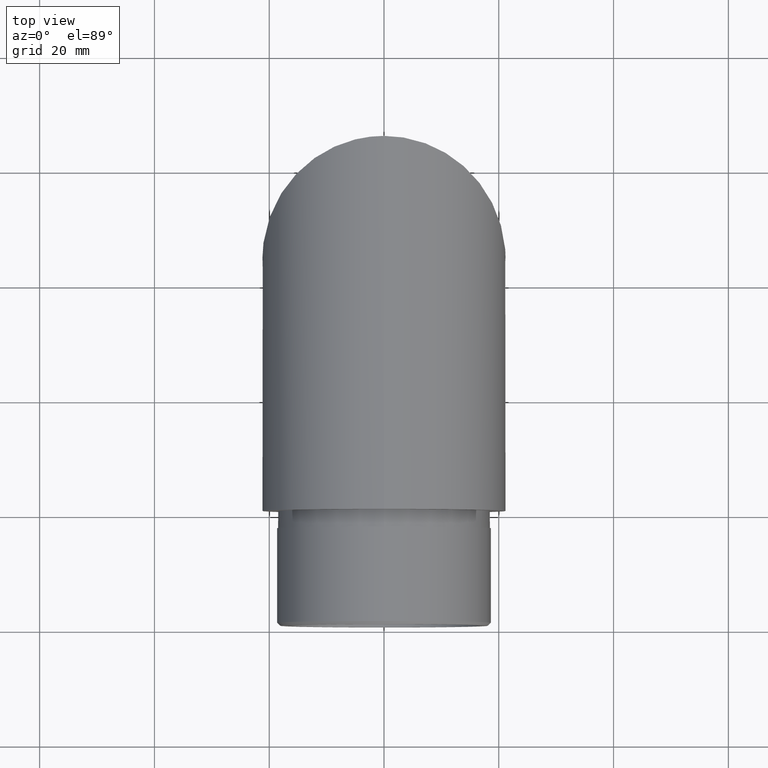
[diagram: clean part render]
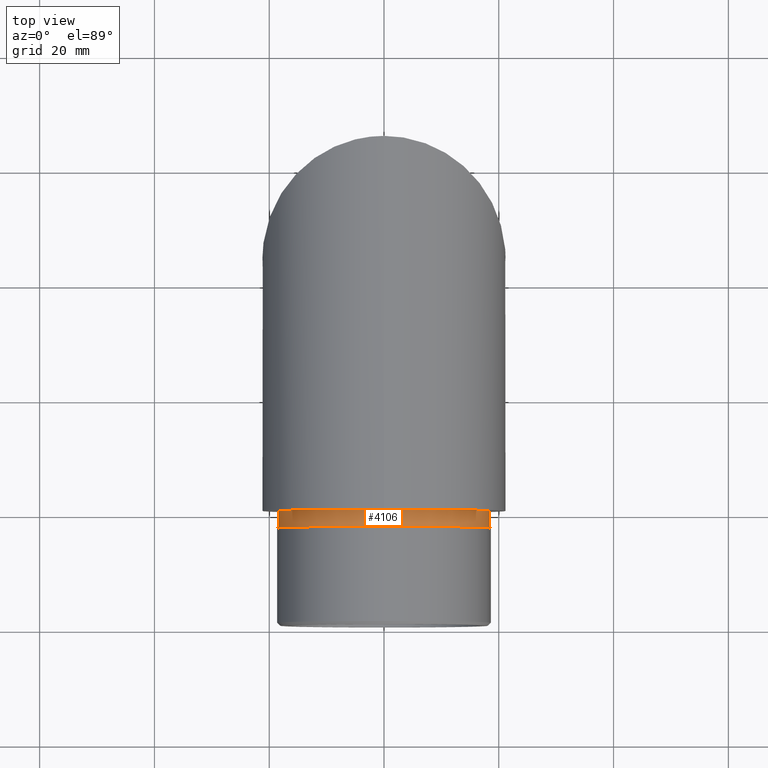
[diagram: same view with one face highlighted and labeled with its STEP entity id]
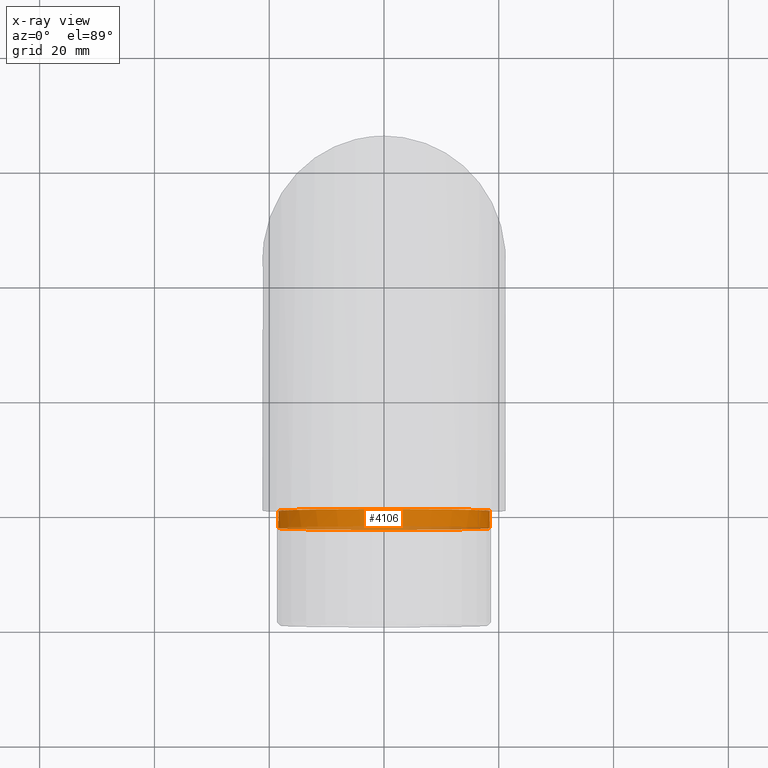
[diagram: x-ray of the same camera — body ghosted, the highlighted face saturated]
A machine part, top view. The second image highlights one B-rep face of the part: STEP entity #4106.
The next image is the same camera in x-ray: the body ghosted, the highlighted face saturated — about 14% of this face is hidden behind the body in this view.
In plain terms, the highlighted cylindrical surface (bore or boss wall) has radius 18.45 mm, axis along (-0, 1, -0).
Its self-contained STEP definition (entity closure, byte-faithful):
#367 = CARTESIAN_POINT ( 'NONE',  ( 0.0000000000000000000, -3.000000000000000000, 0.0000000000000000000 ) ) ;
#900 = CIRCLE ( 'NONE', #4754, 18.44999999999999900 ) ;
#1065 = DIRECTION ( 'NONE',  ( -0.0000000000000000000, 1.000000000000000000, -0.0000000000000000000 ) ) ;
#1566 = EDGE_LOOP ( 'NONE', ( #2091 ) ) ;
#2091 = ORIENTED_EDGE ( 'NONE', *, *, #10907, .T. ) ;
#2128 = EDGE_CURVE ( 'NONE', #9049, #9049, #8070, .T. ) ;
#2241 = AXIS2_PLACEMENT_3D ( 'NONE', #10020, #1065, #11097 ) ;
#2313 = DIRECTION ( 'NONE',  ( 0.0000000000000000000, 0.0000000000000000000, -1.000000000000000000 ) ) ;
#3530 = ORIENTED_EDGE ( 'NONE', *, *, #2128, .F. ) ;
#3547 = CARTESIAN_POINT ( 'NONE',  ( 0.0000000000000000000, 0.0000000000000000000, 18.44999999999999900 ) ) ;
#3898 = DIRECTION ( 'NONE',  ( -0.0000000000000000000, -1.000000000000000000, -0.0000000000000000000 ) ) ;
#4106 = ADVANCED_FACE ( 'NONE', ( #7576, #4959 ), #7105, .T. ) ;
#4487 = DIRECTION ( 'NONE',  ( 0.0000000000000000000, -1.000000000000000000, 0.0000000000000000000 ) ) ;
#4754 = AXIS2_PLACEMENT_3D ( 'NONE', #11175, #3898, #8199 ) ;
#4959 = FACE_OUTER_BOUND ( 'NONE', #1566, .T. ) ;
#5380 = AXIS2_PLACEMENT_3D ( 'NONE', #367, #4487, #2313 ) ;
#5644 = CARTESIAN_POINT ( 'NONE',  ( 0.0000000000000000000, -3.000000000000000000, -18.44999999999999900 ) ) ;
#7105 = CYLINDRICAL_SURFACE ( 'NONE', #2241, 18.44999999999999900 ) ;
#7576 = FACE_OUTER_BOUND ( 'NONE', #10562, .T. ) ;
#8070 = CIRCLE ( 'NONE', #5380, 18.44999999999999900 ) ;
#8199 = DIRECTION ( 'NONE',  ( 0.0000000000000000000, 0.0000000000000000000, 1.000000000000000000 ) ) ;
#9049 = VERTEX_POINT ( 'NONE', #5644 ) ;
#10020 = CARTESIAN_POINT ( 'NONE',  ( 0.0000000000000000000, -3.000000000000000000, 0.0000000000000000000 ) ) ;
#10562 = EDGE_LOOP ( 'NONE', ( #3530 ) ) ;
#10907 = EDGE_CURVE ( 'NONE', #12662, #12662, #900, .T. ) ;
#11097 = DIRECTION ( 'NONE',  ( 0.0000000000000000000, 0.0000000000000000000, 1.000000000000000000 ) ) ;
#11175 = CARTESIAN_POINT ( 'NONE',  ( 0.0000000000000000000, 0.0000000000000000000, 0.0000000000000000000 ) ) ;
#12662 = VERTEX_POINT ( 'NONE', #3547 ) ;